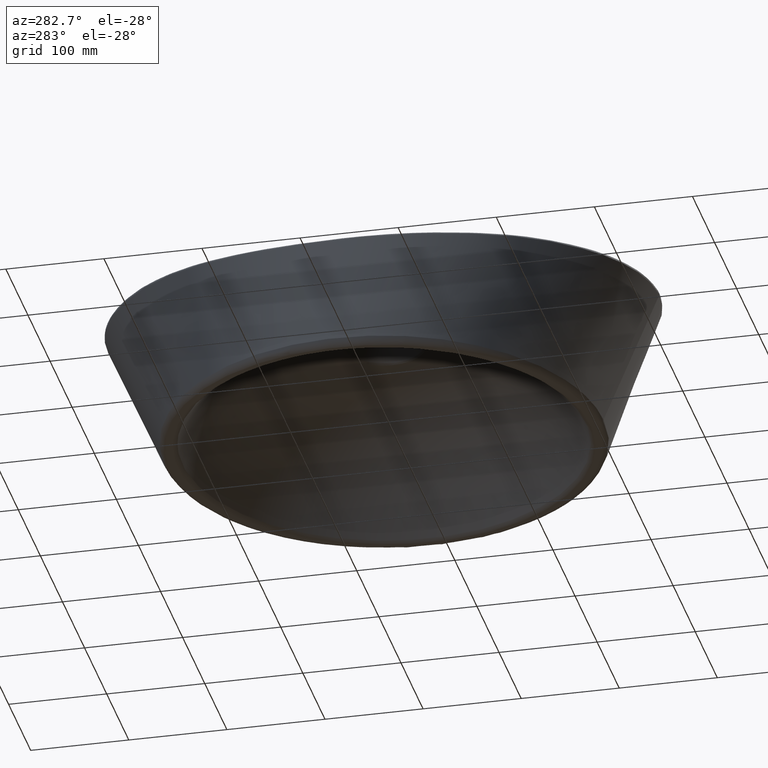
[diagram: clean part render]
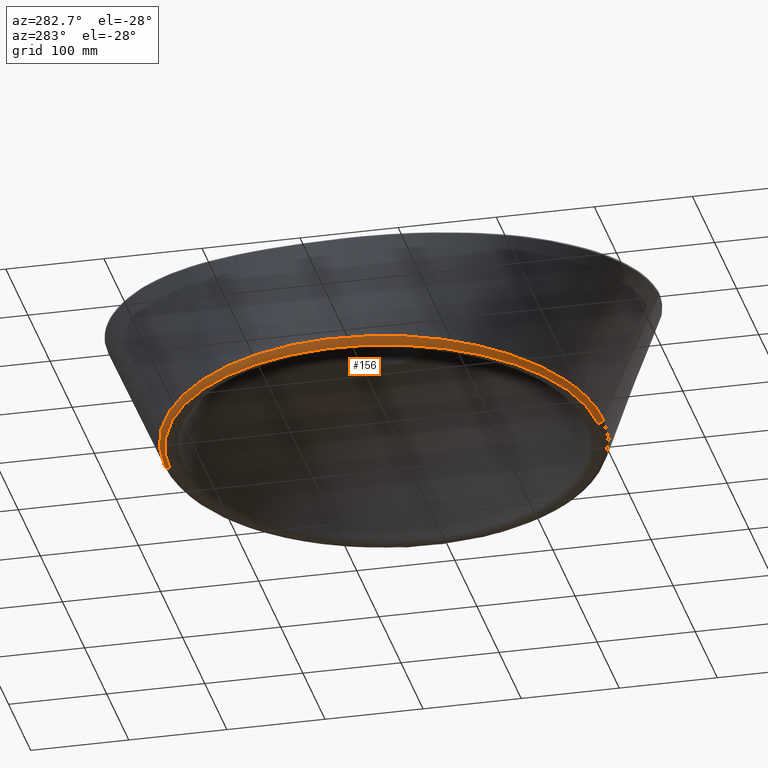
[diagram: same view with one face highlighted and labeled with its STEP entity id]
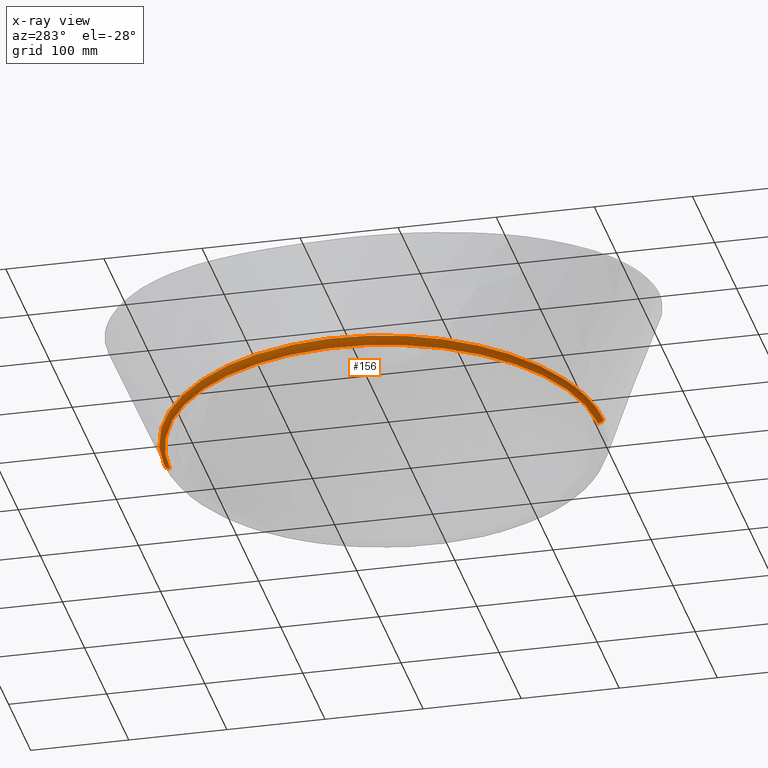
[diagram: x-ray of the same camera — body ghosted, the highlighted face saturated]
A machine part, auxiliary view. The second image highlights one B-rep face of the part: STEP entity #156.
The next image is the same camera in x-ray: the body ghosted, the highlighted face saturated — about 0% of this face is hidden behind the body in this view.
In plain terms, the highlighted face is a freeform B-spline surface patch.
Its self-contained STEP definition (entity closure, byte-faithful):
#106=(
BOUNDED_SURFACE()
B_SPLINE_SURFACE(3,2,((#9583,#9584,#9585),(#9586,#9587,#9588),(#9589,#9590,
#9591),(#9592,#9593,#9594),(#9595,#9596,#9597),(#9598,#9599,#9600),(#9601,
#9602,#9603),(#9604,#9605,#9606),(#9607,#9608,#9609),(#9610,#9611,#9612),
(#9613,#9614,#9615),(#9616,#9617,#9618),(#9619,#9620,#9621),(#9622,#9623,
#9624),(#9625,#9626,#9627),(#9628,#9629,#9630),(#9631,#9632,#9633),(#9634,
#9635,#9636),(#9637,#9638,#9639),(#9640,#9641,#9642),(#9643,#9644,#9645),
(#9646,#9647,#9648),(#9649,#9650,#9651),(#9652,#9653,#9654),(#9655,#9656,
#9657),(#9658,#9659,#9660),(#9661,#9662,#9663),(#9664,#9665,#9666),(#9667,
#9668,#9669),(#9670,#9671,#9672),(#9673,#9674,#9675),(#9676,#9677,#9678),
(#9679,#9680,#9681),(#9682,#9683,#9684),(#9685,#9686,#9687),(#9688,#9689,
#9690),(#9691,#9692,#9693),(#9694,#9695,#9696),(#9697,#9698,#9699),(#9700,
#9701,#9702),(#9703,#9704,#9705),(#9706,#9707,#9708),(#9709,#9710,#9711),
(#9712,#9713,#9714),(#9715,#9716,#9717),(#9718,#9719,#9720),(#9721,#9722,
#9723),(#9724,#9725,#9726),(#9727,#9728,#9729),(#9730,#9731,#9732),(#9733,
#9734,#9735),(#9736,#9737,#9738)),.UNSPECIFIED.,.F.,.F.,.F.)
B_SPLINE_SURFACE_WITH_KNOTS((4,2,2,2,2,2,2,2,2,2,2,2,2,2,2,2,2,2,2,2,2,
2,2,2,2,4),(3,3),(0.,0.03125,0.0625,0.09375,0.125,0.1875,0.21875,0.25,0.3125,
0.34375,0.375,0.40625,0.4375,0.5,0.53125,0.5625,0.625,0.65625,0.6875,0.75,
0.8125,0.84375,0.875,0.9375,0.96875,1.),(0.,1.),.UNSPECIFIED.)
GEOMETRIC_REPRESENTATION_ITEM()
RATIONAL_B_SPLINE_SURFACE(((1.,0.834428211813019,1.),(1.,0.834944555113558,
1.),(1.,0.834232617021807,1.),(1.,0.83179098581072,1.),(1.,0.830322690295099,
1.),(1.,0.826051931989253,1.),(1.,0.823073341151024,1.),(1.,0.816045119473869,
1.),(1.,0.812092816997088,1.),(1.,0.798411954927094,1.),(1.,0.785975283419293,
1.),(1.,0.765683287868546,1.),(1.,0.758738310632371,1.),(1.,0.744389050449267,
1.),(1.,0.737035131372505,1.),(1.,0.713991246175847,1.),(1.,0.697412189563045,
1.),(1.,0.674324042364713,1.),(1.,0.666931633026598,1.),(1.,0.6533014421499,
1.),(1.,0.647031170774536,1.),(1.,0.635718008635714,1.),(1.,0.630708635106418,
1.),(1.,0.621780115613583,1.),(1.,0.617834531749092,1.),(1.,0.608071487203248,
1.),(1.,0.604265647464463,1.),(1.,0.603546189030453,1.),(1.,0.604133260981898,
1.),(1.,0.607117395008084,1.),(1.,0.609491532468342,1.),(1.,0.619371805362083,
1.),(1.,0.629664978561904,1.),(1.,0.649335964936232,1.),(1.,0.656609660070275,
1.),(1.,0.672015254597638,1.),(1.,0.680174506634411,1.),(1.,0.705217149917182,
1.),(1.,0.722229231930682,1.),(1.,0.753635363494173,1.),(1.,0.768061930373148,
1.),(1.,0.785931759600347,1.),(1.,0.791258521392222,1.),(1.,0.80130621800763,
1.),(1.,0.806010314600957,1.),(1.,0.818735113259995,1.),(1.,0.825244208688483,
1.),(1.,0.831842123481936,1.),(1.,0.833361907483254,1.),(1.,0.834617969916173,
1.),(1.,0.835041223888616,1.),(1.,0.834683644971101,1.)))
REPRESENTATION_ITEM('')
SURFACE()
);
#131=FACE_OUTER_BOUND('',#229,.T.);
#156=ADVANCED_FACE('',(#131),#106,.T.);
#229=EDGE_LOOP('',(#295,#296,#297,#298));
#295=ORIENTED_EDGE('',*,*,#375,.F.);
#296=ORIENTED_EDGE('',*,*,#374,.F.);
#297=ORIENTED_EDGE('',*,*,#376,.F.);
#298=ORIENTED_EDGE('',*,*,#341,.F.);
#312=VERTEX_POINT('',#566);
#313=VERTEX_POINT('',#567);
#336=VERTEX_POINT('',#6665);
#339=VERTEX_POINT('',#6724);
#341=EDGE_CURVE('',#312,#313,#380,.T.);
#374=EDGE_CURVE('',#336,#339,#413,.T.);
#375=EDGE_CURVE('',#339,#312,#414,.T.);
#376=EDGE_CURVE('',#313,#336,#415,.T.);
#380=B_SPLINE_CURVE_WITH_KNOTS('',3,(#520,#521,#522,#523,#524,#525,#526,
#527,#528,#529,#530,#531,#532,#533,#534,#535,#536,#537,#538,#539,#540,#541,
#542,#543,#544,#545,#546,#547,#548,#549,#550,#551,#552,#553,#554,#555,#556,
#557,#558,#559,#560,#561,#562,#563,#564,#565),.UNSPECIFIED.,.F.,.F.,(4,
2,2,2,2,2,2,2,2,2,2,2,2,2,2,2,2,2,2,2,2,2,4),(0.,0.0625000000000002,0.0937500000000003,
0.125,0.187500000000001,0.218750000000001,0.250000000000001,0.312500000000001,
0.375,0.40625,0.4375,0.5,0.5625,0.625,0.65625,0.6875,0.75,0.78125,0.8125,
0.84375,0.875,0.9375,1.),.UNSPECIFIED.);
#413=B_SPLINE_CURVE_WITH_KNOTS('',3,(#7984,#7985,#7986,#7987,#7988,#7989,
#7990,#7991,#7992,#7993,#7994,#7995,#7996,#7997,#7998,#7999,#8000,#8001,
#8002,#8003,#8004,#8005,#8006,#8007,#8008,#8009,#8010,#8011,#8012,#8013,
#8014,#8015,#8016,#8017,#8018,#8019,#8020,#8021,#8022,#8023,#8024,#8025,
#8026,#8027,#8028,#8029),.UNSPECIFIED.,.F.,.F.,(4,2,2,2,2,2,2,2,2,2,2,2,
2,2,2,2,2,2,2,2,2,2,4),(0.,0.0625000000000002,0.125,0.15625,0.187500000000001,
0.218750000000001,0.250000000000001,0.312500000000001,0.343750000000001,
0.375000000000001,0.437500000000001,0.500000000000002,0.562500000000002,
0.593750000000002,0.625000000000002,0.687500000000001,0.750000000000001,
0.781250000000001,0.812500000000001,0.875000000000001,0.906250000000001,
0.9375,1.),.UNSPECIFIED.);
#414=B_SPLINE_CURVE_WITH_KNOTS('',3,(#9571,#9572,#9573,#9574,#9575,#9576),
 .UNSPECIFIED.,.F.,.F.,(4,2,4),(0.,0.5,1.),.UNSPECIFIED.);
#415=B_SPLINE_CURVE_WITH_KNOTS('',3,(#9577,#9578,#9579,#9580,#9581,#9582),
 .UNSPECIFIED.,.F.,.F.,(4,2,4),(0.,0.5,1.),.UNSPECIFIED.);
#520=CARTESIAN_POINT('',(268.55516377575,-398.264496976266,110.000000000038));
#521=CARTESIAN_POINT('',(254.250943650795,-398.265998730742,110.000000000038));
#522=CARTESIAN_POINT('',(240.19466066184,-396.811474539025,110.000000000038));
#523=CARTESIAN_POINT('',(219.454448493227,-392.60828044841,110.000000000039));
#524=CARTESIAN_POINT('',(212.600030249087,-390.860817974228,110.000000000039));
#525=CARTESIAN_POINT('',(199.010565896903,-386.664872879345,110.000000000039));
#526=CARTESIAN_POINT('',(192.268739444016,-384.208852030774,110.000000000039));
#527=CARTESIAN_POINT('',(172.686485455835,-375.922250218367,110.00000000004));
#528=CARTESIAN_POINT('',(160.332276585989,-369.133433348565,110.00000000004));
#529=CARTESIAN_POINT('',(142.802033281918,-357.143585738032,110.000000000041));
#530=CARTESIAN_POINT('',(137.097781446703,-352.818718482157,110.000000000041));
#531=CARTESIAN_POINT('',(126.195926310985,-343.660118609511,110.000000000041));
#532=CARTESIAN_POINT('',(121.011182552322,-338.842976766801,110.000000000041));
#533=CARTESIAN_POINT('',(106.251814955246,-323.681320615401,110.000000000041));
#534=CARTESIAN_POINT('',(97.4634499576256,-312.634264322012,110.000000000042));
#535=CARTESIAN_POINT('',(81.9604474535129,-288.687224236353,110.000000000042));
#536=CARTESIAN_POINT('',(75.4455659184357,-276.076229364554,110.000000000042));
#537=CARTESIAN_POINT('',(67.5777229488807,-256.441931366468,110.000000000042));
#538=CARTESIAN_POINT('',(65.2690262699813,-249.765072149534,110.000000000042));
#539=CARTESIAN_POINT('',(61.2835820150631,-236.145436231061,110.000000000042));
#540=CARTESIAN_POINT('',(59.6036259469005,-229.171820330507,110.000000000042));
#541=CARTESIAN_POINT('',(55.608412406325,-208.25491194379,110.000000000043));
#542=CARTESIAN_POINT('',(54.2832163712896,-194.217899247196,110.000000000043));
#543=CARTESIAN_POINT('',(54.2889948138297,-165.960467473245,110.000000000043));
#544=CARTESIAN_POINT('',(55.666334893605,-151.626098505949,110.000000000043));
#545=CARTESIAN_POINT('',(60.9747928320024,-123.868847909325,110.000000000043));
#546=CARTESIAN_POINT('',(64.8851011765978,-110.329666615306,110.000000000043));
#547=CARTESIAN_POINT('',(72.7384235910694,-90.5580956958242,110.000000000042));
#548=CARTESIAN_POINT('',(75.7104490023545,-84.0257923043853,110.000000000042));
#549=CARTESIAN_POINT('',(82.2159689386691,-71.3973780376921,110.000000000042));
#550=CARTESIAN_POINT('',(85.7532107062285,-65.2812221883283,110.000000000042));
#551=CARTESIAN_POINT('',(97.2048522836284,-47.517489751574,110.000000000042));
#552=CARTESIAN_POINT('',(105.953475338901,-36.4506848874837,110.000000000042));
#553=CARTESIAN_POINT('',(120.873869399796,-21.1018376371234,110.000000000042));
#554=CARTESIAN_POINT('',(126.105638906726,-16.2440866231995,110.000000000042));
#555=CARTESIAN_POINT('',(136.936351292528,-7.14422652821084,110.000000000041));
#556=CARTESIAN_POINT('',(142.55466436585,-2.88195784553298,110.000000000041));
#557=CARTESIAN_POINT('',(154.194954285621,5.0704458150481,110.000000000041));
#558=CARTESIAN_POINT('',(160.216923095592,8.76059218347068,110.000000000041));
#559=CARTESIAN_POINT('',(172.66794785701,15.5638990971528,110.000000000041));
#560=CARTESIAN_POINT('',(179.132389370826,18.6895673513785,110.000000000041));
#561=CARTESIAN_POINT('',(198.766617049614,26.9861110703899,110.00000000004));
#562=CARTESIAN_POINT('',(212.244300393884,31.1421757539983,110.00000000004));
#563=CARTESIAN_POINT('',(239.951521681426,36.7913013058161,110.000000000039));
#564=CARTESIAN_POINT('',(254.261646104614,38.2572432283024,110.000000000039));
#565=CARTESIAN_POINT('',(268.564663369317,38.2550878492682,110.000000000039));
#566=CARTESIAN_POINT('',(268.55516377575,-398.264496976266,110.000000000038));
#567=CARTESIAN_POINT('',(268.564663369317,38.2550878492682,110.000000000039));
#6665=CARTESIAN_POINT('',(268.564110490542,43.7699936043267,113.636566890279));
#6724=CARTESIAN_POINT('',(268.554375719818,-403.781584315395,113.641664042684));
#7984=CARTESIAN_POINT('',(268.564110499387,43.7699936050689,113.636566890291));
#7985=CARTESIAN_POINT('',(253.888421382318,43.7702205400696,113.632160248526));
#7986=CARTESIAN_POINT('',(239.205438409846,42.2832256048559,113.669664085929));
#7987=CARTESIAN_POINT('',(210.754679758236,36.5583133411311,113.856417944439));
#7988=CARTESIAN_POINT('',(196.907864467502,32.3410431678551,113.99025024482));
#7989=CARTESIAN_POINT('',(176.728020418864,23.9018815071871,114.241270168044));
#7990=CARTESIAN_POINT('',(170.082539699869,20.7194658391872,114.332637065355));
#7991=CARTESIAN_POINT('',(157.281107244053,13.7855389490728,114.524988149716));
#7992=CARTESIAN_POINT('',(151.088749633532,10.0215039083162,114.626563837278));
#7993=CARTESIAN_POINT('',(139.117046772399,1.90488116743356,114.851607599753));
#7994=CARTESIAN_POINT('',(133.33788156395,-2.44797433693414,114.974677237436));
#7995=CARTESIAN_POINT('',(122.197783027378,-11.750003515297,115.23109557984));
#7996=CARTESIAN_POINT('',(116.817050020301,-16.7194518276265,115.365269667558));
#7997=CARTESIAN_POINT('',(101.47192653806,-32.4374212587547,115.777529714806));
#7998=CARTESIAN_POINT('',(92.4853780233826,-43.7806608669156,116.065709384427));
#7999=CARTESIAN_POINT('',(80.7400891947894,-62.0024972029257,116.471825639074));
#8000=CARTESIAN_POINT('',(77.1152986871199,-68.2784820801565,116.601488578776));
#8001=CARTESIAN_POINT('',(70.4529493676919,-81.239297652535,116.842158796216));
#8002=CARTESIAN_POINT('',(67.4105803386408,-87.9466654507478,116.953600226564));
#8003=CARTESIAN_POINT('',(59.3750974364721,-108.24807561005,117.250606675358));
#8004=CARTESIAN_POINT('',(55.380190530933,-122.148110242293,117.400427685733));
#8005=CARTESIAN_POINT('',(49.9480107995581,-150.635166477572,117.590754152739));
#8006=CARTESIAN_POINT('',(48.5308973074715,-165.342180537459,117.631762606504));
#8007=CARTESIAN_POINT('',(48.4903964367703,-194.346075911309,117.619079559422));
#8008=CARTESIAN_POINT('',(49.8209483462243,-208.75554424345,117.565843958561));
#8009=CARTESIAN_POINT('',(53.8648199109331,-230.229561033318,117.425581818809));
#8010=CARTESIAN_POINT('',(55.5682469416851,-237.390396600266,117.368456532123));
#8011=CARTESIAN_POINT('',(59.6166714041432,-251.380165260065,117.237484939864));
#8012=CARTESIAN_POINT('',(61.9645452401663,-258.239477421481,117.16349838068));
#8013=CARTESIAN_POINT('',(69.9738474517766,-278.412827162559,116.909267178903));
#8014=CARTESIAN_POINT('',(76.613450520221,-291.369710710309,116.696233816753));
#8015=CARTESIAN_POINT('',(92.4628272566967,-315.986699206744,116.203160614909));
#8016=CARTESIAN_POINT('',(101.460977035057,-327.3343015809,115.928230401453));
#8017=CARTESIAN_POINT('',(116.590483644207,-342.895939615455,115.528229486214));
#8018=CARTESIAN_POINT('',(121.907827738313,-347.837994391696,115.398615233268));
#8019=CARTESIAN_POINT('',(133.093247790637,-357.229553737214,115.142520738587));
#8020=CARTESIAN_POINT('',(138.952500595907,-361.665238709374,115.016350542342));
#8021=CARTESIAN_POINT('',(156.956993407111,-373.94669137537,114.643700745555));
#8022=CARTESIAN_POINT('',(169.64803973297,-380.88218331812,114.401782742621));
#8023=CARTESIAN_POINT('',(189.748870894857,-389.351128569319,114.128238183549));
#8024=CARTESIAN_POINT('',(196.657529519805,-391.858847501493,114.048983694631));
#8025=CARTESIAN_POINT('',(210.650641709513,-396.161117509331,113.905904949811));
#8026=CARTESIAN_POINT('',(217.736434010713,-397.960123099671,113.841918227263));
#8027=CARTESIAN_POINT('',(239.261684056579,-402.300950820493,113.698022498276));
#8028=CARTESIAN_POINT('',(253.878861829638,-403.781162597442,113.637295598989));
#8029=CARTESIAN_POINT('',(268.554375720025,-403.781584315828,113.641664042808));
#9571=CARTESIAN_POINT('',(268.554375765918,-403.781581231003,113.641656827959));
#9572=CARTESIAN_POINT('',(268.554441273256,-403.322945476747,112.568728975592));
#9573=CARTESIAN_POINT('',(268.554552585265,-402.543618018957,111.635295534704));
#9574=CARTESIAN_POINT('',(268.554830770241,-400.595964817034,110.349709804118));
#9575=CARTESIAN_POINT('',(268.554997114684,-399.431339421174,110.000000000038));
#9576=CARTESIAN_POINT('',(268.555163775767,-398.264497140493,110.000000000038));
#9577=CARTESIAN_POINT('',(268.564663369342,38.2550880169023,110.000000000039));
#9578=CARTESIAN_POINT('',(268.564546492247,39.4210062024235,110.000000000039));
#9579=CARTESIAN_POINT('',(268.564429836509,40.5847162109406,110.349141865915));
#9580=CARTESIAN_POINT('',(268.564234689783,42.531420272314,111.632810115622));
#9581=CARTESIAN_POINT('',(268.56415656839,43.3107273879603,112.564905311104));
#9582=CARTESIAN_POINT('',(268.564110529713,43.7699904328329,113.636559491557));
#9583=CARTESIAN_POINT('',(272.759505712787,-403.746942946299,113.644754712004));
#9584=CARTESIAN_POINT('',(272.735411274857,-402.191555490445,110.000000000038));
#9585=CARTESIAN_POINT('',(272.674030565039,-398.229197606732,110.000000000038));
#9586=CARTESIAN_POINT('',(265.35935886202,-403.858202644554,113.636846421521));
#9587=CARTESIAN_POINT('',(265.382290142182,-402.299301535406,110.000000000442));
#9588=CARTESIAN_POINT('',(265.424452522139,-398.34150049778,110.000000000038));
#9589=CARTESIAN_POINT('',(257.946800889213,-403.644606196527,113.648689173196));
#9590=CARTESIAN_POINT('',(258.014115336198,-402.090585251588,110.000000000187));
#9591=CARTESIAN_POINT('',(258.222279862757,-398.128226791076,110.000000000038));
#9592=CARTESIAN_POINT('',(243.303807479099,-402.440699163687,113.697502955711));
#9593=CARTESIAN_POINT('',(243.472757500434,-400.912860402322,109.999999999889));
#9594=CARTESIAN_POINT('',(243.950070984381,-396.934716612599,110.000000000038));
#9595=CARTESIAN_POINT('',(236.045749440236,-401.480285724981,113.726825478139));
#9596=CARTESIAN_POINT('',(236.255613811986,-399.967372727584,110.000000000187));
#9597=CARTESIAN_POINT('',(236.873914660136,-395.986311073393,110.000000000039));
#9598=CARTESIAN_POINT('',(221.640048926665,-398.845529709557,113.811713185852));
#9599=CARTESIAN_POINT('',(221.943359992862,-397.383150620541,109.99999999989));
#9600=CARTESIAN_POINT('',(222.841506774308,-393.38614903274,110.000000000039));
#9601=CARTESIAN_POINT('',(214.495411725432,-397.169931510698,113.870751489169));
#9602=CARTESIAN_POINT('',(214.830765570316,-395.736876218707,110.000000000337));
#9603=CARTESIAN_POINT('',(215.885716005,-391.731689562648,110.000000000039));
#9604=CARTESIAN_POINT('',(200.328878231607,-393.088094471239,114.008992543141));
#9605=CARTESIAN_POINT('',(200.740159388766,-391.738693494982,109.999999999739));
#9606=CARTESIAN_POINT('',(202.096119885973,-387.707214715788,110.000000000039));
#9607=CARTESIAN_POINT('',(193.273053961131,-390.666938666579,114.086312633779));
#9608=CARTESIAN_POINT('',(193.710068206436,-389.359586774799,110.00000000004));
#9609=CARTESIAN_POINT('',(195.231022677535,-385.323613669081,110.000000000039));
#9610=CARTESIAN_POINT('',(172.725522162717,-382.416229966791,114.351458421173));
#9611=CARTESIAN_POINT('',(173.123519429718,-381.233304512018,110.00000000004));
#9612=CARTESIAN_POINT('',(175.259721093397,-377.21546099447,110.00000000004));
#9613=CARTESIAN_POINT('',(159.752345879467,-375.580689272526,114.589110326146));
#9614=CARTESIAN_POINT('',(160.108742920269,-374.478325788439,109.999999999552));
#9615=CARTESIAN_POINT('',(162.666945322641,-370.508075955811,110.00000000004));
#9616=CARTESIAN_POINT('',(141.361733902714,-363.40652510583,114.965298252591));
#9617=CARTESIAN_POINT('',(141.817093660359,-362.663935038808,110.000000000291));
#9618=CARTESIAN_POINT('',(144.803322154112,-358.596214413804,110.00000000004));
#9619=CARTESIAN_POINT('',(135.386089444748,-359.007786080961,115.092411815517));
#9620=CARTESIAN_POINT('',(135.809960650463,-358.345833769591,109.999999999991));
#9621=CARTESIAN_POINT('',(138.998529048961,-354.297846753274,110.000000000041));
#9622=CARTESIAN_POINT('',(123.906104303791,-349.616210019458,115.351237002771));
#9623=CARTESIAN_POINT('',(124.239149198263,-349.134903966148,110.000000000091));
#9624=CARTESIAN_POINT('',(127.848790641852,-345.133878518057,110.000000000041));
#9625=CARTESIAN_POINT('',(118.447017231903,-344.66408048622,115.482058608857));
#9626=CARTESIAN_POINT('',(118.722709173185,-344.265551350583,109.999999999894));
#9627=CARTESIAN_POINT('',(122.547318465508,-340.307607305358,110.000000000041));
#9628=CARTESIAN_POINT('',(102.906948116502,-329.04368278465,115.885430115125));
#9629=CARTESIAN_POINT('',(102.785796230217,-328.753820694705,110.000000000345));
#9630=CARTESIAN_POINT('',(107.455791557093,-325.102456407535,110.000000000041));
#9631=CARTESIAN_POINT('',(93.6757289133004,-317.627554591289,116.166237854849));
#9632=CARTESIAN_POINT('',(93.3738504094174,-317.469326303103,110.000000000237));
#9633=CARTESIAN_POINT('',(98.4751872174874,-314.000312507573,110.000000000041));
#9634=CARTESIAN_POINT('',(81.4910985303179,-299.045545250685,116.544155780562));
#9635=CARTESIAN_POINT('',(80.9396799512429,-299.289012231991,109.999999999941));
#9636=CARTESIAN_POINT('',(86.5934655693086,-295.927120147127,110.000000000042));
#9637=CARTESIAN_POINT('',(77.7345929546097,-292.638315103964,116.662983708807));
#9638=CARTESIAN_POINT('',(77.057859033846,-292.940499333192,110.00000000014));
#9639=CARTESIAN_POINT('',(82.9258140502506,-289.695367435117,110.000000000042));
#9640=CARTESIAN_POINT('',(70.9247588622431,-279.602786199379,116.878924054537));
#9641=CARTESIAN_POINT('',(69.9747598273105,-279.982198167035,109.999999999942));
#9642=CARTESIAN_POINT('',(76.2709773180283,-277.015373287791,110.000000000042));
#9643=CARTESIAN_POINT('',(67.8523696501696,-272.946324403372,116.976591930995));
#9644=CARTESIAN_POINT('',(66.7781791885266,-273.357867428225,109.999999999552));
#9645=CARTESIAN_POINT('',(73.2653759384411,-270.539959035503,110.000000000042));
#9646=CARTESIAN_POINT('',(62.3670324720114,-259.356532297999,117.150735325424));
#9647=CARTESIAN_POINT('',(61.0328158758033,-259.782806915838,110.000000000542));
#9648=CARTESIAN_POINT('',(67.895998611626,-257.319057194853,110.000000000042));
#9649=CARTESIAN_POINT('',(59.9554848536085,-252.424942678316,117.226718566684));
#9650=CARTESIAN_POINT('',(58.508737771372,-252.853551492713,110.000000000191));
#9651=CARTESIAN_POINT('',(65.5328930565803,-250.573287509953,110.000000000042));
#9652=CARTESIAN_POINT('',(55.7961851522184,-238.287899558295,117.36091300932));
#9653=CARTESIAN_POINT('',(54.1230777364663,-238.673663531667,109.999999999892));
#9654=CARTESIAN_POINT('',(61.4533571085681,-236.809634086301,110.000000000042));
#9655=CARTESIAN_POINT('',(54.0444475614164,-231.047727420839,117.4194929857));
#9656=CARTESIAN_POINT('',(52.2750159173309,-231.411587143248,109.999999999795));
#9657=CARTESIAN_POINT('',(59.7328413947242,-229.757563197138,110.000000000042));
#9658=CARTESIAN_POINT('',(49.8810357063644,-209.326354220077,117.563497155524));
#9659=CARTESIAN_POINT('',(47.8246714327738,-209.43880548511,110.000000000547));
#9660=CARTESIAN_POINT('',(55.6401077008394,-208.593005556825,110.000000000043));
#9661=CARTESIAN_POINT('',(48.5055522025465,-194.75873901314,117.618359087397));
#9662=CARTESIAN_POINT('',(46.3715686067441,-194.88450768134,109.99999999925));
#9663=CARTESIAN_POINT('',(54.2832525003361,-194.38859027291,110.000000000043));
#9664=CARTESIAN_POINT('',(48.5128764533317,-172.754334312218,117.628784663095));
#9665=CARTESIAN_POINT('',(46.3611501380652,-172.681989082814,110.00000000044));
#9666=CARTESIAN_POINT('',(54.287531803869,-172.941137268363,110.000000000043));
#9667=CARTESIAN_POINT('',(48.8651352321033,-165.396654978886,117.620302751097));
#9668=CARTESIAN_POINT('',(46.7295913779949,-165.276354026586,110.000000000244));
#9669=CARTESIAN_POINT('',(54.6332602521732,-165.768212496769,110.000000000043));
#9670=CARTESIAN_POINT('',(50.2795927898719,-150.6332331679,117.576928339172));
#9671=CARTESIAN_POINT('',(48.2299731263927,-150.38618796236,109.999999999843));
#9672=CARTESIAN_POINT('',(56.0240820191781,-151.374072387256,110.000000000043));
#9673=CARTESIAN_POINT('',(51.3304313719735,-143.344524299871,117.542371021925));
#9674=CARTESIAN_POINT('',(49.3419162958265,-143.061901805743,109.999999999993));
#9675=CARTESIAN_POINT('',(57.0580132998282,-144.267378005274,110.000000000043));
#9676=CARTESIAN_POINT('',(55.4731337330396,-121.744950961341,117.397063439673));
#9677=CARTESIAN_POINT('',(53.7285761386404,-121.444237407119,110.000000000141));
#9678=CARTESIAN_POINT('',(61.1334206597102,-123.212061705056,110.000000000043));
#9679=CARTESIAN_POINT('',(59.5426110398475,-107.689835911777,117.244327898624));
#9680=CARTESIAN_POINT('',(57.9762093535139,-107.480271351754,110.000000000348));
#9681=CARTESIAN_POINT('',(65.1360014266846,-109.522617349474,110.000000000043));
#9682=CARTESIAN_POINT('',(67.7562798193786,-87.1462367071209,116.940869585891));
#9683=CARTESIAN_POINT('',(66.72226996887,-86.7665874049778,109.999999999895));
#9684=CARTESIAN_POINT('',(73.1814291999237,-89.5401628869405,110.000000000042));
#9685=CARTESIAN_POINT('',(70.8665984767122,-80.3637460181363,116.827077048901));
#9686=CARTESIAN_POINT('',(69.9735584680646,-80.0243468473149,110.000000000244));
#9687=CARTESIAN_POINT('',(76.225029784746,-82.9437562720134,110.000000000042));
#9688=CARTESIAN_POINT('',(77.674239967818,-67.2729274090326,116.581457967926));
#9689=CARTESIAN_POINT('',(77.0802563765802,-67.0290470974728,109.999999999845));
#9690=CARTESIAN_POINT('',(82.8778379366817,-70.2119357871737,110.000000000042));
#9691=CARTESIAN_POINT('',(81.3801267806401,-60.9349295650536,116.449187864938));
#9692=CARTESIAN_POINT('',(80.9212646737095,-60.7549912471283,109.999999999992));
#9693=CARTESIAN_POINT('',(86.4949966425611,-64.0484438644945,110.000000000042));
#9694=CARTESIAN_POINT('',(93.396585715116,-42.5387687692216,116.035369972255));
#9695=CARTESIAN_POINT('',(93.1938463465121,-42.79546394185,110.000000000139));
#9696=CARTESIAN_POINT('',(98.2068108474725,-46.1569205185248,110.000000000042));
#9697=CARTESIAN_POINT('',(102.605555799793,-31.0914327043234,115.743578273982));
#9698=CARTESIAN_POINT('',(102.580830753556,-31.4740079868945,110.000000000144));
#9699=CARTESIAN_POINT('',(107.156757242573,-35.0243277504289,110.000000000042));
#9700=CARTESIAN_POINT('',(123.58748740869,-9.99577753615636,115.18736390193));
#9701=CARTESIAN_POINT('',(123.853885407914,-10.7426721225223,109.999999999943));
#9702=CARTESIAN_POINT('',(127.524720321715,-14.4773698514868,110.000000000041));
#9703=CARTESIAN_POINT('',(134.999204804475,-0.696582384698705,114.922673550965));
#9704=CARTESIAN_POINT('',(135.369075229464,-1.53415750219095,110.000000000041));
#9705=CARTESIAN_POINT('',(138.600143472933,-5.39545984657904,110.000000000041));
#9706=CARTESIAN_POINT('',(153.34886887065,11.4312950287327,114.588161005453));
#9707=CARTESIAN_POINT('',(153.889799140378,10.4558500191568,110.000000000041));
#9708=CARTESIAN_POINT('',(156.417630191864,6.46731226783528,110.000000000041));
#9709=CARTESIAN_POINT('',(159.674320748917,15.1702491393773,114.487222296668));
#9710=CARTESIAN_POINT('',(160.216778949172,14.1338006777165,110.000000000191));
#9711=CARTESIAN_POINT('',(162.563172447746,10.129056486509,110.000000000041));
#9712=CARTESIAN_POINT('',(172.752224119921,22.0344647204958,114.295203008336));
#9713=CARTESIAN_POINT('',(173.271225397524,20.8682137426114,109.999999999892));
#9714=CARTESIAN_POINT('',(175.273096606681,16.8589016594671,110.000000000041));
#9715=CARTESIAN_POINT('',(179.527515022283,25.1636131844553,114.204384367169));
#9716=CARTESIAN_POINT('',(180.030279150114,23.9439700237192,110.000000000191));
#9717=CARTESIAN_POINT('',(181.858501357253,19.9303398062316,110.00000000004));
#9718=CARTESIAN_POINT('',(200.050773431679,33.3992351655711,113.956937347738));
#9719=CARTESIAN_POINT('',(200.364063943881,31.9777288937801,109.999999999745));
#9720=CARTESIAN_POINT('',(201.813897739135,28.0236589305715,110.00000000004));
#9721=CARTESIAN_POINT('',(214.120067553795,37.4519111149589,113.827896125682));
#9722=CARTESIAN_POINT('',(214.416507645772,35.9943765786954,110.000000000239));
#9723=CARTESIAN_POINT('',(215.51216866356,32.0213062698989,110.00000000004));
#9724=CARTESIAN_POINT('',(235.805836498136,41.4447562711173,113.696522222506));
#9725=CARTESIAN_POINT('',(236.018811342872,39.9209002779428,109.99999999994));
#9726=CARTESIAN_POINT('',(236.639357891435,35.9642367111724,110.000000000039));
#9727=CARTESIAN_POINT('',(243.163079443093,42.4255309909789,113.666099906776));
#9728=CARTESIAN_POINT('',(243.337615854632,40.8867028795862,109.999999999738));
#9729=CARTESIAN_POINT('',(243.805340112454,36.9322756451174,110.000000000039));
#9730=CARTESIAN_POINT('',(257.949255569571,43.6364506741982,113.640958864846));
#9731=CARTESIAN_POINT('',(258.019321409553,42.0800065830265,110.00000000034));
#9732=CARTESIAN_POINT('',(258.216379333517,38.1229207228572,110.000000000039));
#9733=CARTESIAN_POINT('',(265.374253318052,43.8470288970009,113.631789082855));
#9734=CARTESIAN_POINT('',(265.39682278934,42.2863509408484,110.00000000019));
#9735=CARTESIAN_POINT('',(265.443059763442,38.3324241486687,110.000000000039));
#9736=CARTESIAN_POINT('',(272.769153982818,43.7351051688961,113.639638553852));
#9737=CARTESIAN_POINT('',(272.744878111312,42.1779125149009,110.000000000039));
#9738=CARTESIAN_POINT('',(272.683169244955,38.2195543833254,110.000000000039));